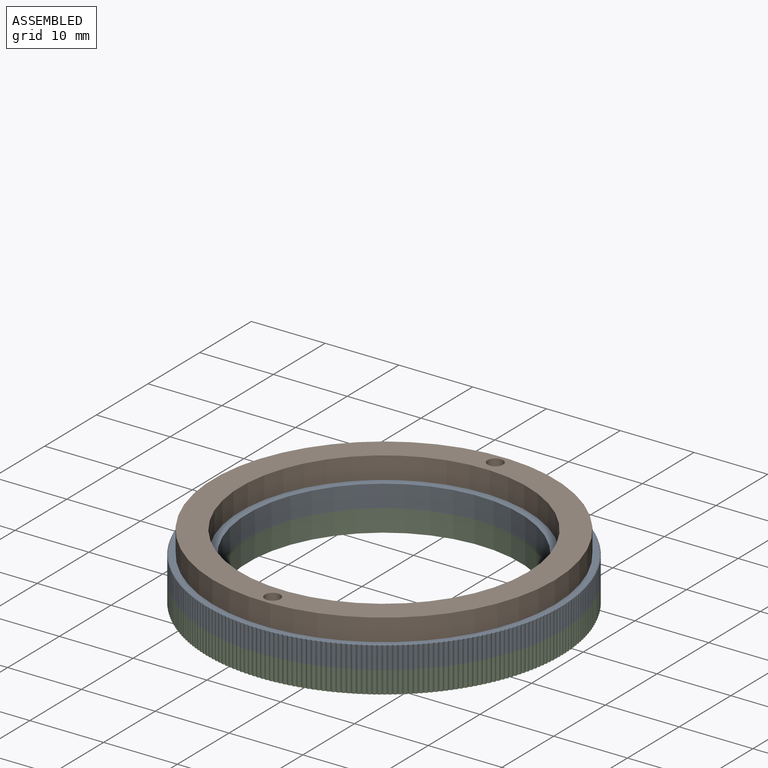
[diagram: assembled view]
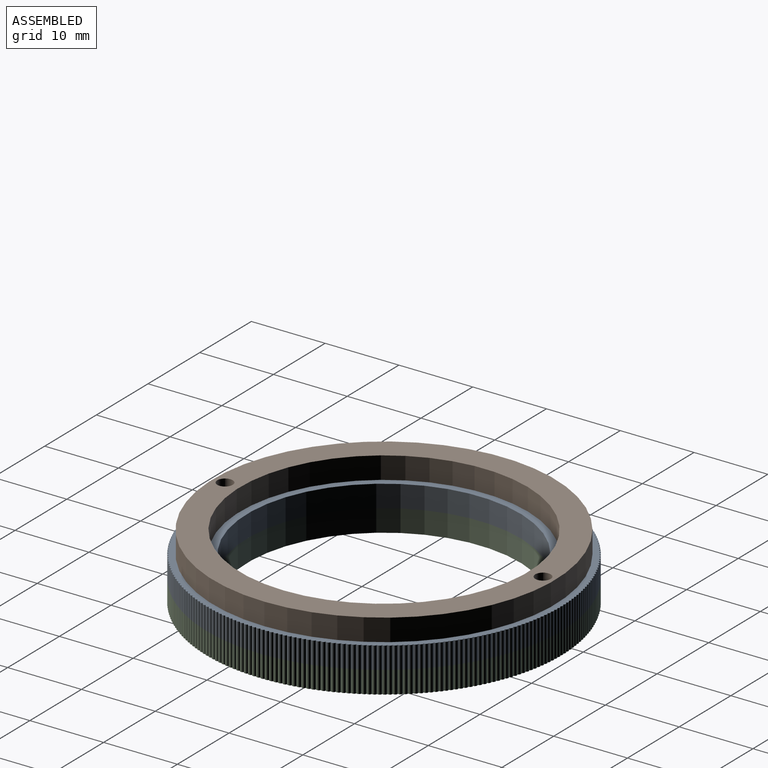
[diagram: assembled view, second angle]
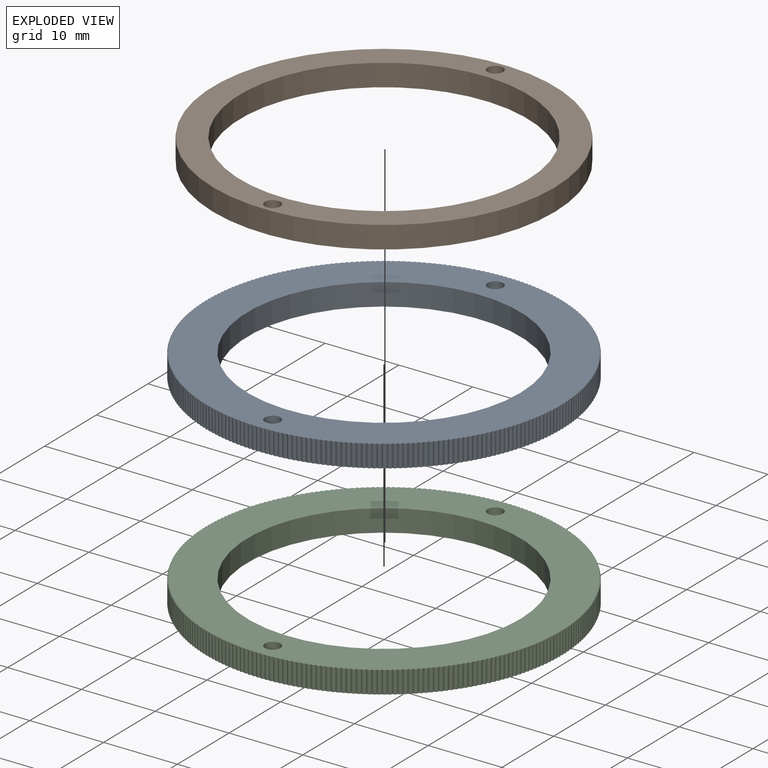
[diagram: exploded view]
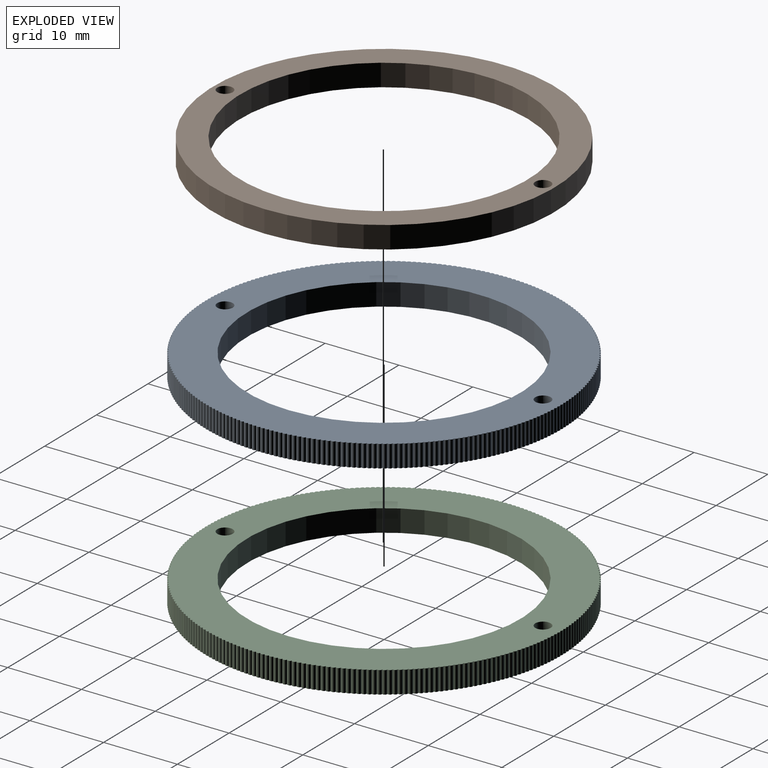
[diagram: exploded view, second angle]
ASSEMBLY  parts=3 mates=2
PART A: 265 faces, bbox 48.1x48.1x3 mm
  f0: plane 48.14x48.14mm, normal (0,0,1), area 730.3mm2, adj f2,f3,f4,f5,f6,f7,f8,f9
  f1: plane 48.14x48.14mm, normal (0,0,-1), area 730.3mm2, adj f2,f3,f4,f5,f6,f7,f8,f9
  f2: cylinder r=1.05mm len=3mm, axis (0,0,1), area 19.8mm2, adj f0,f1
  f3: cylinder r=1.05mm len=3mm, axis (0,0,1), area 19.8mm2, adj f0,f1
  f4: cylinder r=0.32mm len=3mm, axis (0,0,1), area 2.1mm2, adj f0,f1,f5,f263
  f5: cylinder r=0.32mm len=3mm, axis (0,0,1), area 2.1mm2, adj f0,f1,f4,f6
  f6: cylinder r=0.32mm len=3mm, axis (0,0,1), area 2.1mm2, adj f0,f1,f5,f7
  f7: cylinder r=0.32mm len=3mm, axis (0,0,1), area 2.1mm2, adj f0,f1,f6,f8
  f8: cylinder r=0.32mm len=3mm, axis (0,0,1), area 2.1mm2, adj f0,f1,f7,f9
  f9: cylinder r=0.32mm len=3mm, axis (0,0,1), area 2.1mm2, adj f0,f1,f8,f10
  f10: cylinder r=0.32mm len=3mm, axis (0,0,1), area 2.1mm2, adj f0,f1,f9,f11
  f11: cylinder r=0.32mm len=3mm, axis (0,0,1), area 2.1mm2, adj f0,f1,f10,f12
  f12: cylinder r=0.32mm len=3mm, axis (0,0,1), area 2.1mm2, adj f0,f1,f11,f13
  f13: cylinder r=0.32mm len=3mm, axis (0,0,1), area 2.1mm2, adj f0,f1,f12,f14
  f14: cylinder r=0.32mm len=3mm, axis (0,0,1), area 2.1mm2, adj f0,f1,f13,f15
  f15: cylinder r=0.32mm len=3mm, axis (0,0,1), area 2.1mm2, adj f0,f1,f14,f16
  f16: cylinder r=0.32mm len=3mm, axis (0,0,1), area 2.1mm2, adj f0,f1,f15,f17
  f17: cylinder r=0.32mm len=3mm, axis (0,0,1), area 2.1mm2, adj f0,f1,f16,f18
  f18: cylinder r=0.32mm len=3mm, axis (0,0,1), area 2.1mm2, adj f0,f1,f17,f19
  f19: cylinder r=0.32mm len=3mm, axis (0,0,1), area 2.1mm2, adj f0,f1,f18,f20
  f20: cylinder r=0.32mm len=3mm, axis (0,0,1), area 2.1mm2, adj f0,f1,f19,f21
  f21: cylinder r=0.32mm len=3mm, axis (0,0,1), area 2.1mm2, adj f0,f1,f20,f22
  f22: cylinder r=0.32mm len=3mm, axis (0,0,1), area 2.1mm2, adj f0,f1,f21,f23
  f23: cylinder r=0.32mm len=3mm, axis (0,0,1), area 2.1mm2, adj f0,f1,f22,f24
  f24: cylinder r=0.32mm len=3mm, axis (0,0,1), area 2.1mm2, adj f0,f1,f23,f25
  f25: cylinder r=0.32mm len=3mm, axis (0,0,1), area 2.1mm2, adj f0,f1,f24,f26
  f26: cylinder r=0.32mm len=3mm, axis (0,0,1), area 2.1mm2, adj f0,f1,f25,f27
  f27: cylinder r=0.32mm len=3mm, axis (0,0,1), area 2.1mm2, adj f0,f1,f26,f28
  f28: cylinder r=0.32mm len=3mm, axis (0,0,1), area 2.1mm2, adj f0,f1,f27,f29
  f29: cylinder r=0.32mm len=3mm, axis (0,0,1), area 2.1mm2, adj f0,f1,f28,f30
  f30: cylinder r=0.32mm len=3mm, axis (0,0,1), area 2.1mm2, adj f0,f1,f29,f31
  f31: cylinder r=0.32mm len=3mm, axis (0,0,1), area 2.1mm2, adj f0,f1,f30,f32
  f32: cylinder r=0.32mm len=3mm, axis (0,0,1), area 2.1mm2, adj f0,f1,f31,f33
  f33: cylinder r=0.32mm len=3mm, axis (0,0,1), area 2.1mm2, adj f0,f1,f32,f34
  f34: cylinder r=0.32mm len=3mm, axis (0,0,1), area 2.1mm2, adj f0,f1,f33,f35
  f35: cylinder r=0.32mm len=3mm, axis (0,0,1), area 2.1mm2, adj f0,f1,f34,f36
  f36: cylinder r=0.32mm len=3mm, axis (0,0,1), area 2.1mm2, adj f0,f1,f35,f37
  f37: cylinder r=0.32mm len=3mm, axis (0,0,1), area 2.1mm2, adj f0,f1,f36,f38
  f38: cylinder r=0.32mm len=3mm, axis (0,0,1), area 2.1mm2, adj f0,f1,f37,f39
  f39: cylinder r=0.32mm len=3mm, axis (0,0,1), area 2.1mm2, adj f0,f1,f38,f40
  f40: cylinder r=0.32mm len=3mm, axis (0,0,1), area 2.1mm2, adj f0,f1,f39,f41
  f41: cylinder r=0.32mm len=3mm, axis (0,0,1), area 2.1mm2, adj f0,f1,f40,f42
  f42: cylinder r=0.32mm len=3mm, axis (0,0,1), area 2.1mm2, adj f0,f1,f41,f43
  f43: cylinder r=0.32mm len=3mm, axis (0,0,1), area 2.1mm2, adj f0,f1,f42,f44
  f44: cylinder r=0.32mm len=3mm, axis (0,0,1), area 2.1mm2, adj f0,f1,f43,f45
  f45: cylinder r=0.32mm len=3mm, axis (0,0,1), area 2.1mm2, adj f0,f1,f44,f46
  f46: cylinder r=0.32mm len=3mm, axis (0,0,1), area 2.1mm2, adj f0,f1,f45,f47
  f47: cylinder r=0.32mm len=3mm, axis (0,0,1), area 2.1mm2, adj f0,f1,f46,f48
  f48: cylinder r=0.32mm len=3mm, axis (0,0,1), area 2.1mm2, adj f0,f1,f47,f49
  f49: cylinder r=0.32mm len=3mm, axis (0,0,1), area 2.1mm2, adj f0,f1,f48,f50
  f50: cylinder r=0.32mm len=3mm, axis (0,0,1), area 2.1mm2, adj f0,f1,f49,f51
  f51: cylinder r=0.32mm len=3mm, axis (0,0,1), area 2.1mm2, adj f0,f1,f50,f52
  f52: cylinder r=0.32mm len=3mm, axis (0,0,1), area 2.1mm2, adj f0,f1,f51,f53
  f53: cylinder r=0.32mm len=3mm, axis (0,0,1), area 2.1mm2, adj f0,f1,f52,f54
  f54: cylinder r=0.32mm len=3mm, axis (0,0,1), area 2.1mm2, adj f0,f1,f53,f55
  f55: cylinder r=0.32mm len=3mm, axis (0,0,1), area 2.1mm2, adj f0,f1,f54,f56
  f56: cylinder r=0.32mm len=3mm, axis (0,0,1), area 2.1mm2, adj f0,f1,f55,f57
  f57: cylinder r=0.32mm len=3mm, axis (0,0,1), area 2.1mm2, adj f0,f1,f56,f58
  f58: cylinder r=0.32mm len=3mm, axis (0,0,1), area 2.1mm2, adj f0,f1,f57,f59
  f59: cylinder r=0.32mm len=3mm, axis (0,0,1), area 2.1mm2, adj f0,f1,f58,f60
  f60: cylinder r=0.32mm len=3mm, axis (0,0,1), area 2.1mm2, adj f0,f1,f59,f61
  f61: cylinder r=0.32mm len=3mm, axis (0,0,1), area 2.1mm2, adj f0,f1,f60,f62
  f62: cylinder r=0.32mm len=3mm, axis (0,0,1), area 2.1mm2, adj f0,f1,f61,f63
  f63: cylinder r=0.32mm len=3mm, axis (0,0,1), area 2.1mm2, adj f0,f1,f62,f64
  f64: cylinder r=0.32mm len=3mm, axis (0,0,1), area 2.1mm2, adj f0,f1,f63,f65
  f65: cylinder r=0.32mm len=3mm, axis (0,0,1), area 2.1mm2, adj f0,f1,f64,f66
  f66: cylinder r=0.32mm len=3mm, axis (0,0,1), area 2.1mm2, adj f0,f1,f65,f67
  f67: cylinder r=0.32mm len=3mm, axis (0,0,1), area 2.1mm2, adj f0,f1,f66,f68
  f68: cylinder r=0.32mm len=3mm, axis (0,0,1), area 2.1mm2, adj f0,f1,f67,f69
  f69: cylinder r=0.32mm len=3mm, axis (0,0,1), area 2.1mm2, adj f0,f1,f68,f70
  f70: cylinder r=0.32mm len=3mm, axis (0,0,1), area 2.1mm2, adj f0,f1,f69,f71
  f71: cylinder r=0.32mm len=3mm, axis (0,0,1), area 2.1mm2, adj f0,f1,f70,f72
  f72: cylinder r=0.32mm len=3mm, axis (0,0,1), area 2.1mm2, adj f0,f1,f71,f73
  f73: cylinder r=0.32mm len=3mm, axis (0,0,1), area 2.1mm2, adj f0,f1,f72,f74
  f74: cylinder r=0.32mm len=3mm, axis (0,0,1), area 2.1mm2, adj f0,f1,f73,f75
  f75: cylinder r=0.32mm len=3mm, axis (0,0,1), area 2.1mm2, adj f0,f1,f74,f76
  f76: cylinder r=0.32mm len=3mm, axis (0,0,1), area 2.1mm2, adj f0,f1,f75,f77
  f77: cylinder r=0.32mm len=3mm, axis (0,0,1), area 2.1mm2, adj f0,f1,f76,f78
  f78: cylinder r=0.32mm len=3mm, axis (0,0,1), area 2.1mm2, adj f0,f1,f77,f79
  f79: cylinder r=0.32mm len=3mm, axis (0,0,1), area 2.1mm2, adj f0,f1,f78,f80
  f80: cylinder r=0.32mm len=3mm, axis (0,0,1), area 2.1mm2, adj f0,f1,f79,f81
  f81: cylinder r=0.32mm len=3mm, axis (0,0,1), area 2.1mm2, adj f0,f1,f80,f82
  f82: cylinder r=0.32mm len=3mm, axis (0,0,1), area 2.1mm2, adj f0,f1,f81,f83
  f83: cylinder r=0.32mm len=3mm, axis (0,0,1), area 2.1mm2, adj f0,f1,f82,f84
  f84: cylinder r=0.32mm len=3mm, axis (0,0,1), area 2.1mm2, adj f0,f1,f83,f85
  f85: cylinder r=0.32mm len=3mm, axis (0,0,1), area 2.1mm2, adj f0,f1,f84,f86
  f86: cylinder r=0.32mm len=3mm, axis (0,0,1), area 2.1mm2, adj f0,f1,f85,f87
  f87: cylinder r=0.32mm len=3mm, axis (0,0,1), area 2.1mm2, adj f0,f1,f86,f88
  f88: cylinder r=0.32mm len=3mm, axis (0,0,1), area 2.1mm2, adj f0,f1,f87,f89
  f89: cylinder r=0.32mm len=3mm, axis (0,0,1), area 2.1mm2, adj f0,f1,f88,f90
  f90: cylinder r=0.32mm len=3mm, axis (0,0,1), area 2.1mm2, adj f0,f1,f89,f91
  f91: cylinder r=0.32mm len=3mm, axis (0,0,1), area 2.1mm2, adj f0,f1,f90,f92
  f92: cylinder r=0.32mm len=3mm, axis (0,0,1), area 2.1mm2, adj f0,f1,f91,f93
  f93: cylinder r=0.32mm len=3mm, axis (0,0,1), area 2.1mm2, adj f0,f1,f92,f94
  f94: cylinder r=0.32mm len=3mm, axis (0,0,1), area 2.1mm2, adj f0,f1,f93,f95
  f95: cylinder r=0.32mm len=3mm, axis (0,0,1), area 2.1mm2, adj f0,f1,f94,f96
  f96: cylinder r=0.32mm len=3mm, axis (0,0,1), area 2.1mm2, adj f0,f1,f95,f97
  f97: cylinder r=0.32mm len=3mm, axis (0,0,1), area 2.1mm2, adj f0,f1,f96,f98
  f98: cylinder r=0.32mm len=3mm, axis (0,0,1), area 2.1mm2, adj f0,f1,f97,f99
  f99: cylinder r=0.32mm len=3mm, axis (0,0,1), area 2.1mm2, adj f0,f1,f98,f100
  f100: cylinder r=0.32mm len=3mm, axis (0,0,1), area 2.1mm2, adj f0,f1,f99,f101
  f101: cylinder r=0.32mm len=3mm, axis (0,0,1), area 2.1mm2, adj f0,f1,f100,f102
  f102: cylinder r=0.32mm len=3mm, axis (0,0,1), area 2.1mm2, adj f0,f1,f101,f103
  f103: cylinder r=0.32mm len=3mm, axis (0,0,1), area 2.1mm2, adj f0,f1,f102,f104
  f104: cylinder r=0.32mm len=3mm, axis (0,0,1), area 2.1mm2, adj f0,f1,f103,f105
  f105: cylinder r=0.32mm len=3mm, axis (0,0,1), area 2.1mm2, adj f0,f1,f104,f106
  f106: cylinder r=0.32mm len=3mm, axis (0,0,1), area 2.1mm2, adj f0,f1,f105,f107
  f107: cylinder r=0.32mm len=3mm, axis (0,0,1), area 2.1mm2, adj f0,f1,f106,f108
  f108: cylinder r=0.32mm len=3mm, axis (0,0,1), area 2.1mm2, adj f0,f1,f107,f109
  f109: cylinder r=0.32mm len=3mm, axis (0,0,1), area 2.1mm2, adj f0,f1,f108,f110
  f110: cylinder r=0.32mm len=3mm, axis (0,0,1), area 2.1mm2, adj f0,f1,f109,f111
  f111: cylinder r=0.32mm len=3mm, axis (0,0,1), area 2.1mm2, adj f0,f1,f110,f112
  f112: cylinder r=0.32mm len=3mm, axis (0,0,1), area 2.1mm2, adj f0,f1,f111,f113
  f113: cylinder r=0.32mm len=3mm, axis (0,0,1), area 2.1mm2, adj f0,f1,f112,f114
  f114: cylinder r=0.32mm len=3mm, axis (0,0,1), area 2.1mm2, adj f0,f1,f113,f115
  f115: cylinder r=0.32mm len=3mm, axis (0,0,1), area 2.1mm2, adj f0,f1,f114,f116
  f116: cylinder r=0.32mm len=3mm, axis (0,0,1), area 2.1mm2, adj f0,f1,f115,f117
  f117: cylinder r=0.32mm len=3mm, axis (0,0,1), area 2.1mm2, adj f0,f1,f116,f118
  f118: cylinder r=0.32mm len=3mm, axis (0,0,1), area 2.1mm2, adj f0,f1,f117,f119
  f119: cylinder r=0.32mm len=3mm, axis (0,0,1), area 2.1mm2, adj f0,f1,f118,f120
  f120: cylinder r=0.32mm len=3mm, axis (0,0,1), area 2.1mm2, adj f0,f1,f119,f121
  f121: cylinder r=0.32mm len=3mm, axis (0,0,1), area 2.1mm2, adj f0,f1,f120,f122
  f122: cylinder r=0.32mm len=3mm, axis (0,0,1), area 2.1mm2, adj f0,f1,f121,f123
  f123: cylinder r=0.32mm len=3mm, axis (0,0,1), area 2.1mm2, adj f0,f1,f122,f124
  f124: cylinder r=0.32mm len=3mm, axis (0,0,1), area 2.1mm2, adj f0,f1,f123,f125
  f125: cylinder r=0.32mm len=3mm, axis (0,0,1), area 2.1mm2, adj f0,f1,f124,f126
  f126: cylinder r=0.32mm len=3mm, axis (0,0,1), area 2.1mm2, adj f0,f1,f125,f127
  f127: cylinder r=0.32mm len=3mm, axis (0,0,1), area 2.1mm2, adj f0,f1,f126,f128
  f128: cylinder r=0.32mm len=3mm, axis (0,0,1), area 2.1mm2, adj f0,f1,f127,f129
  f129: cylinder r=0.32mm len=3mm, axis (0,0,1), area 2.1mm2, adj f0,f1,f128,f130
  f130: cylinder r=0.32mm len=3mm, axis (0,0,1), area 2.1mm2, adj f0,f1,f129,f131
  f131: cylinder r=0.32mm len=3mm, axis (0,0,1), area 2.1mm2, adj f0,f1,f130,f132
  f132: cylinder r=0.32mm len=3mm, axis (0,0,1), area 2.1mm2, adj f0,f1,f131,f133
  f133: cylinder r=0.32mm len=3mm, axis (0,0,1), area 2.1mm2, adj f0,f1,f132,f134
  f134: cylinder r=0.32mm len=3mm, axis (0,0,1), area 2.1mm2, adj f0,f1,f133,f135
  f135: cylinder r=0.32mm len=3mm, axis (0,0,1), area 2.1mm2, adj f0,f1,f134,f136
  f136: cylinder r=0.32mm len=3mm, axis (0,0,1), area 2.1mm2, adj f0,f1,f135,f137
  f137: cylinder r=0.32mm len=3mm, axis (0,0,1), area 2.1mm2, adj f0,f1,f136,f138
  f138: cylinder r=0.32mm len=3mm, axis (0,0,1), area 2.1mm2, adj f0,f1,f137,f139
  f139: cylinder r=0.32mm len=3mm, axis (0,0,1), area 2.1mm2, adj f0,f1,f138,f140
  f140: cylinder r=0.32mm len=3mm, axis (0,0,1), area 2.1mm2, adj f0,f1,f139,f141
  f141: cylinder r=0.32mm len=3mm, axis (0,0,1), area 2.1mm2, adj f0,f1,f140,f142
  f142: cylinder r=0.32mm len=3mm, axis (0,0,1), area 2.1mm2, adj f0,f1,f141,f143
  f143: cylinder r=0.32mm len=3mm, axis (0,0,1), area 2.1mm2, adj f0,f1,f142,f144
  f144: cylinder r=0.32mm len=3mm, axis (0,0,1), area 2.1mm2, adj f0,f1,f143,f145
  f145: cylinder r=0.32mm len=3mm, axis (0,0,1), area 2.1mm2, adj f0,f1,f144,f146
  f146: cylinder r=0.32mm len=3mm, axis (0,0,1), area 2.1mm2, adj f0,f1,f145,f147
  f147: cylinder r=0.32mm len=3mm, axis (0,0,1), area 2.1mm2, adj f0,f1,f146,f148
  f148: cylinder r=0.32mm len=3mm, axis (0,0,1), area 2.1mm2, adj f0,f1,f147,f149
  f149: cylinder r=0.32mm len=3mm, axis (0,0,1), area 2.1mm2, adj f0,f1,f148,f150
  f150: cylinder r=0.32mm len=3mm, axis (0,0,1), area 2.1mm2, adj f0,f1,f149,f151
  f151: cylinder r=0.32mm len=3mm, axis (0,0,1), area 2.1mm2, adj f0,f1,f150,f152
  f152: cylinder r=0.32mm len=3mm, axis (0,0,1), area 2.1mm2, adj f0,f1,f151,f153
  f153: cylinder r=0.32mm len=3mm, axis (0,0,1), area 2.1mm2, adj f0,f1,f152,f154
  f154: cylinder r=0.32mm len=3mm, axis (0,0,1), area 2.1mm2, adj f0,f1,f153,f155
  f155: cylinder r=0.32mm len=3mm, axis (0,0,1), area 2.1mm2, adj f0,f1,f154,f156
  f156: cylinder r=0.32mm len=3mm, axis (0,0,1), area 2.1mm2, adj f0,f1,f155,f157
  f157: cylinder r=0.32mm len=3mm, axis (0,0,1), area 2.1mm2, adj f0,f1,f156,f158
  f158: cylinder r=0.32mm len=3mm, axis (0,0,1), area 2.1mm2, adj f0,f1,f157,f159
  f159: cylinder r=0.32mm len=3mm, axis (0,0,1), area 2.1mm2, adj f0,f1,f158,f160
  f160: cylinder r=0.32mm len=3mm, axis (0,0,1), area 2.1mm2, adj f0,f1,f159,f161
  f161: cylinder r=0.32mm len=3mm, axis (0,0,1), area 2.1mm2, adj f0,f1,f160,f162
  f162: cylinder r=0.32mm len=3mm, axis (0,0,1), area 2.1mm2, adj f0,f1,f161,f163
  f163: cylinder r=0.32mm len=3mm, axis (0,0,1), area 2.1mm2, adj f0,f1,f162,f164
  f164: cylinder r=0.32mm len=3mm, axis (0,0,1), area 2.1mm2, adj f0,f1,f163,f165
  f165: cylinder r=0.32mm len=3mm, axis (0,0,1), area 2.1mm2, adj f0,f1,f164,f166
  f166: cylinder r=0.32mm len=3mm, axis (0,0,1), area 2.1mm2, adj f0,f1,f165,f167
  f167: cylinder r=0.32mm len=3mm, axis (0,0,1), area 2.1mm2, adj f0,f1,f166,f168
  f168: cylinder r=0.32mm len=3mm, axis (0,0,1), area 2.1mm2, adj f0,f1,f167,f169
  f169: cylinder r=0.32mm len=3mm, axis (0,0,1), area 2.1mm2, adj f0,f1,f168,f170
  f170: cylinder r=0.32mm len=3mm, axis (0,0,1), area 2.1mm2, adj f0,f1,f169,f171
  f171: cylinder r=0.32mm len=3mm, axis (0,0,1), area 2.1mm2, adj f0,f1,f170,f172
  f172: cylinder r=0.32mm len=3mm, axis (0,0,1), area 2.1mm2, adj f0,f1,f171,f173
  f173: cylinder r=0.32mm len=3mm, axis (0,0,1), area 2.1mm2, adj f0,f1,f172,f174
  f174: cylinder r=0.32mm len=3mm, axis (0,0,1), area 2.1mm2, adj f0,f1,f173,f175
  f175: cylinder r=0.32mm len=3mm, axis (0,0,1), area 2.1mm2, adj f0,f1,f174,f176
  f176: cylinder r=0.32mm len=3mm, axis (0,0,1), area 2.1mm2, adj f0,f1,f175,f177
  f177: cylinder r=0.32mm len=3mm, axis (0,0,1), area 2.1mm2, adj f0,f1,f176,f178
  f178: cylinder r=0.32mm len=3mm, axis (0,0,1), area 2.1mm2, adj f0,f1,f177,f179
  f179: cylinder r=0.32mm len=3mm, axis (0,0,1), area 2.1mm2, adj f0,f1,f178,f180
  f180: cylinder r=0.32mm len=3mm, axis (0,0,1), area 2.1mm2, adj f0,f1,f179,f181
  f181: cylinder r=0.32mm len=3mm, axis (0,0,1), area 2.1mm2, adj f0,f1,f180,f182
  f182: cylinder r=0.32mm len=3mm, axis (0,0,1), area 2.1mm2, adj f0,f1,f181,f183
  f183: cylinder r=0.32mm len=3mm, axis (0,0,1), area 2.1mm2, adj f0,f1,f182,f184
  f184: cylinder r=0.32mm len=3mm, axis (0,0,1), area 2.1mm2, adj f0,f1,f183,f185
  f185: cylinder r=0.32mm len=3mm, axis (0,0,1), area 2.1mm2, adj f0,f1,f184,f186
  f186: cylinder r=0.32mm len=3mm, axis (0,0,1), area 2.1mm2, adj f0,f1,f185,f187
  f187: cylinder r=0.32mm len=3mm, axis (0,0,1), area 2.1mm2, adj f0,f1,f186,f188
  f188: cylinder r=0.32mm len=3mm, axis (0,0,1), area 2.1mm2, adj f0,f1,f187,f189
  f189: cylinder r=0.32mm len=3mm, axis (0,0,1), area 2.1mm2, adj f0,f1,f188,f190
  f190: cylinder r=0.32mm len=3mm, axis (0,0,1), area 2.1mm2, adj f0,f1,f189,f191
  f191: cylinder r=0.32mm len=3mm, axis (0,0,1), area 2.1mm2, adj f0,f1,f190,f192
  f192: cylinder r=0.32mm len=3mm, axis (0,0,1), area 2.1mm2, adj f0,f1,f191,f193
  f193: cylinder r=0.32mm len=3mm, axis (0,0,1), area 2.1mm2, adj f0,f1,f192,f194
  f194: cylinder r=0.32mm len=3mm, axis (0,0,1), area 2.1mm2, adj f0,f1,f193,f195
  f195: cylinder r=0.32mm len=3mm, axis (0,0,1), area 2.1mm2, adj f0,f1,f194,f196
  f196: cylinder r=0.32mm len=3mm, axis (0,0,1), area 2.1mm2, adj f0,f1,f195,f197
  f197: cylinder r=0.32mm len=3mm, axis (0,0,1), area 2.1mm2, adj f0,f1,f196,f198
  f198: cylinder r=0.32mm len=3mm, axis (0,0,1), area 2.1mm2, adj f0,f1,f197,f199
  f199: cylinder r=0.32mm len=3mm, axis (0,0,1), area 2.1mm2, adj f0,f1,f198,f200
  f200: cylinder r=0.32mm len=3mm, axis (0,0,1), area 2.1mm2, adj f0,f1,f199,f201
  f201: cylinder r=0.32mm len=3mm, axis (0,0,1), area 2.1mm2, adj f0,f1,f200,f202
  f202: cylinder r=0.32mm len=3mm, axis (0,0,1), area 2.1mm2, adj f0,f1,f201,f203
  f203: cylinder r=0.32mm len=3mm, axis (0,0,1), area 2.1mm2, adj f0,f1,f202,f204
  f204: cylinder r=0.32mm len=3mm, axis (0,0,1), area 2.1mm2, adj f0,f1,f203,f205
  f205: cylinder r=0.32mm len=3mm, axis (0,0,1), area 2.1mm2, adj f0,f1,f204,f206
  f206: cylinder r=0.32mm len=3mm, axis (0,0,1), area 2.1mm2, adj f0,f1,f205,f207
  f207: cylinder r=0.32mm len=3mm, axis (0,0,1), area 2.1mm2, adj f0,f1,f206,f208
  f208: cylinder r=0.32mm len=3mm, axis (0,0,1), area 2.1mm2, adj f0,f1,f207,f209
  f209: cylinder r=0.32mm len=3mm, axis (0,0,1), area 2.1mm2, adj f0,f1,f208,f210
  f210: cylinder r=0.32mm len=3mm, axis (0,0,1), area 2.1mm2, adj f0,f1,f209,f211
  f211: cylinder r=0.32mm len=3mm, axis (0,0,1), area 2.1mm2, adj f0,f1,f210,f212
  f212: cylinder r=0.32mm len=3mm, axis (0,0,1), area 2.1mm2, adj f0,f1,f211,f213
  f213: cylinder r=0.32mm len=3mm, axis (0,0,1), area 2.1mm2, adj f0,f1,f212,f214
  f214: cylinder r=0.32mm len=3mm, axis (0,0,1), area 2.1mm2, adj f0,f1,f213,f215
  f215: cylinder r=0.32mm len=3mm, axis (0,0,1), area 2.1mm2, adj f0,f1,f214,f216
  f216: cylinder r=0.32mm len=3mm, axis (0,0,1), area 2.1mm2, adj f0,f1,f215,f217
  f217: cylinder r=0.32mm len=3mm, axis (0,0,1), area 2.1mm2, adj f0,f1,f216,f218
  f218: cylinder r=0.32mm len=3mm, axis (0,0,1), area 2.1mm2, adj f0,f1,f217,f219
  f219: cylinder r=0.32mm len=3mm, axis (0,0,1), area 2.1mm2, adj f0,f1,f218,f220
  f220: cylinder r=0.32mm len=3mm, axis (0,0,1), area 2.1mm2, adj f0,f1,f219,f221
  f221: cylinder r=0.32mm len=3mm, axis (0,0,1), area 2.1mm2, adj f0,f1,f220,f222
  f222: cylinder r=0.32mm len=3mm, axis (0,0,1), area 2.1mm2, adj f0,f1,f221,f223
  f223: cylinder r=0.32mm len=3mm, axis (0,0,1), area 2.1mm2, adj f0,f1,f222,f224
  f224: cylinder r=0.32mm len=3mm, axis (0,0,1), area 2.1mm2, adj f0,f1,f223,f225
  f225: cylinder r=0.32mm len=3mm, axis (0,0,1), area 2.1mm2, adj f0,f1,f224,f226
  f226: cylinder r=0.32mm len=3mm, axis (0,0,1), area 2.1mm2, adj f0,f1,f225,f227
  f227: cylinder r=0.32mm len=3mm, axis (0,0,1), area 2.1mm2, adj f0,f1,f226,f228
  f228: cylinder r=0.32mm len=3mm, axis (0,0,1), area 2.1mm2, adj f0,f1,f227,f229
  f229: cylinder r=0.32mm len=3mm, axis (0,0,1), area 2.1mm2, adj f0,f1,f228,f230
  f230: cylinder r=0.32mm len=3mm, axis (0,0,1), area 2.1mm2, adj f0,f1,f229,f231
  f231: cylinder r=0.32mm len=3mm, axis (0,0,1), area 2.1mm2, adj f0,f1,f230,f232
  f232: cylinder r=0.32mm len=3mm, axis (0,0,1), area 2.1mm2, adj f0,f1,f231,f233
  f233: cylinder r=0.32mm len=3mm, axis (0,0,1), area 2.1mm2, adj f0,f1,f232,f234
  f234: cylinder r=0.32mm len=3mm, axis (0,0,1), area 2.1mm2, adj f0,f1,f233,f235
  f235: cylinder r=0.32mm len=3mm, axis (0,0,1), area 2.1mm2, adj f0,f1,f234,f236
  f236: cylinder r=0.32mm len=3mm, axis (0,0,1), area 2.1mm2, adj f0,f1,f235,f237
  f237: cylinder r=0.32mm len=3mm, axis (0,0,1), area 2.1mm2, adj f0,f1,f236,f238
  f238: cylinder r=0.32mm len=3mm, axis (0,0,1), area 2.1mm2, adj f0,f1,f237,f239
  f239: cylinder r=0.32mm len=3mm, axis (0,0,1), area 2.1mm2, adj f0,f1,f238,f240
  f240: cylinder r=0.32mm len=3mm, axis (0,0,1), area 2.1mm2, adj f0,f1,f239,f241
  f241: cylinder r=0.32mm len=3mm, axis (0,0,1), area 2.1mm2, adj f0,f1,f240,f242
  f242: cylinder r=0.32mm len=3mm, axis (0,0,1), area 2.1mm2, adj f0,f1,f241,f243
  f243: cylinder r=0.32mm len=3mm, axis (0,0,1), area 2.1mm2, adj f0,f1,f242,f244
  f244: cylinder r=0.32mm len=3mm, axis (0,0,1), area 2.1mm2, adj f0,f1,f243,f245
  f245: cylinder r=0.32mm len=3mm, axis (0,0,1), area 2.1mm2, adj f0,f1,f244,f246
  f246: cylinder r=0.32mm len=3mm, axis (0,0,1), area 2.1mm2, adj f0,f1,f245,f247
  f247: cylinder r=0.32mm len=3mm, axis (0,0,1), area 2.1mm2, adj f0,f1,f246,f248
  f248: cylinder r=0.32mm len=3mm, axis (0,0,1), area 2.1mm2, adj f0,f1,f247,f249
  f249: cylinder r=0.32mm len=3mm, axis (0,0,1), area 2.1mm2, adj f0,f1,f248,f250
  f250: cylinder r=0.32mm len=3mm, axis (0,0,1), area 2.1mm2, adj f0,f1,f249,f251
  f251: cylinder r=0.32mm len=3mm, axis (0,0,1), area 2.1mm2, adj f0,f1,f250,f252
  f252: cylinder r=0.32mm len=3mm, axis (0,0,1), area 2.1mm2, adj f0,f1,f251,f253
  f253: cylinder r=0.32mm len=3mm, axis (0,0,1), area 2.1mm2, adj f0,f1,f252,f254
  f254: cylinder r=0.32mm len=3mm, axis (0,0,1), area 2.1mm2, adj f0,f1,f253,f255
  f255: cylinder r=0.32mm len=3mm, axis (0,0,1), area 2.1mm2, adj f0,f1,f254,f256
  f256: cylinder r=0.32mm len=3mm, axis (0,0,1), area 2.1mm2, adj f0,f1,f255,f257
  f257: cylinder r=0.32mm len=3mm, axis (0,0,1), area 2.1mm2, adj f0,f1,f256,f258
  f258: cylinder r=0.32mm len=3mm, axis (0,0,1), area 2.1mm2, adj f0,f1,f257,f259
  f259: cylinder r=0.32mm len=3mm, axis (0,0,1), area 2.1mm2, adj f0,f1,f258,f260
  f260: cylinder r=0.32mm len=3mm, axis (0,0,1), area 2.1mm2, adj f0,f1,f259,f261
  f261: cylinder r=0.32mm len=3mm, axis (0,0,1), area 2.1mm2, adj f0,f1,f260,f262
  f262: cylinder r=0.32mm len=3mm, axis (0,0,1), area 2.1mm2, adj f0,f1,f261,f263
  f263: cylinder r=0.32mm len=3mm, axis (0,0,1), area 2.1mm2, adj f0,f1,f4,f262
  f264: cylinder r=18.5mm len=37mm, axis (0,0,1), area 348.7mm2, adj f0,f1
PART B: 6 faces, bbox 46.3x46.3x3 mm
  f0: plane 46.3x46.3mm, normal (0,0,1), area 482.1mm2, adj f2,f3,f4,f5
  f1: plane 46.3x46.3mm, normal (0,0,-1), area 482.1mm2, adj f2,f3,f4,f5
  f2: cylinder r=1.05mm len=3mm, axis (0,0,1), area 19.8mm2, adj f0,f1
  f3: cylinder r=1.05mm len=3mm, axis (0,0,1), area 19.8mm2, adj f0,f1
  f4: cylinder r=19.5mm len=39mm, axis (0,0,1), area 367.6mm2, adj f0,f1
  f5: cylinder r=23.15mm len=46.3mm, axis (0,0,1), area 436.4mm2, adj f0,f1
PART C: same geometry as A
PLACE A t=(0,0,-7)mm
PLACE B t=(0,0,-4)mm
PLACE C t=(0,0,-10)mm fixed
MATE fastened A.f3 <-> B.f3  axis (0,0,1) through (0,21.55,-4)mm
MATE fastened C.f3 <-> A.f3  axis (0,0,1) through (0,21.55,-7)mm
